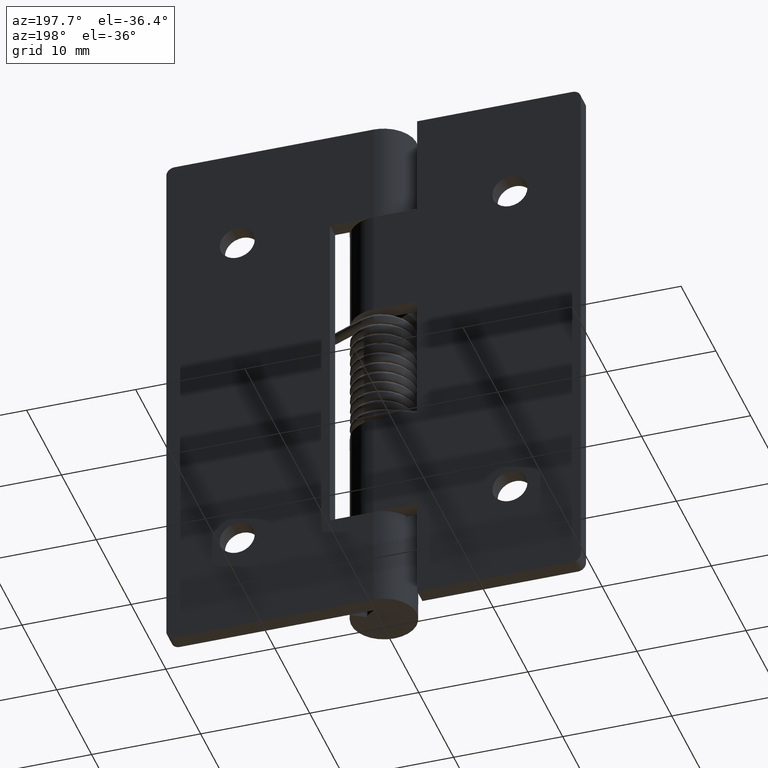
[diagram: clean part render]
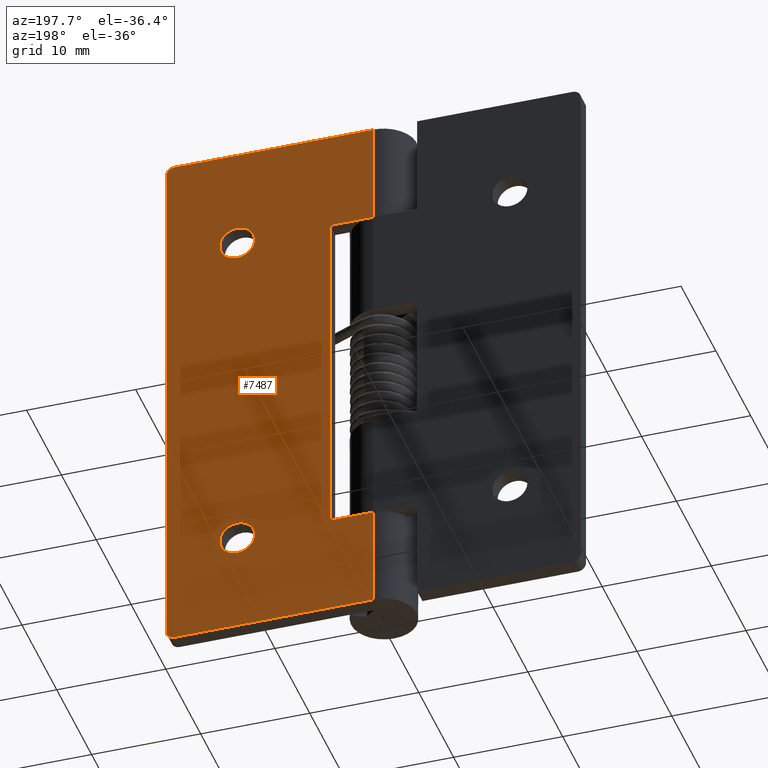
[diagram: same view with one face highlighted and labeled with its STEP entity id]
A machine part, auxiliary view. The second image highlights one B-rep face of the part: STEP entity #7487.
In plain terms, the highlighted face is a freeform B-spline surface patch.
Its self-contained STEP definition (entity closure, byte-faithful):
#6467=CARTESIAN_POINT('',(14.088815242160010,3.0,9.688854775634493));
#6468=VERTEX_POINT('',#6467);
#6474=CARTESIAN_POINT('',(12.500000000000000,3.0,7.899999999999800));
#6475=VERTEX_POINT('',#6474);
#6476=CARTESIAN_POINT('',(14.088815242160010,3.0,9.688854775634491));
#6477=CARTESIAN_POINT('',(14.099999999999998,3.000000000000000,9.594758591628679));
#6478=CARTESIAN_POINT('',(14.100000000000000,3.0,9.499999999999801));
#6479=CARTESIAN_POINT('',(14.100000000000001,3.0,7.899999999999800));
#6480=CARTESIAN_POINT('',(12.500000000000000,3.0,7.899999999999800));
#6488=(BOUNDED_CURVE()B_SPLINE_CURVE(2,(#6476,#6477,#6478,#6479,#6480),.UNSPECIFIED.,.F.,.U.)B_SPLINE_CURVE_WITH_KNOTS((3,2,3),(0.229562473476526,0.250000000000000,0.500000000000000),.UNSPECIFIED.)CURVE()GEOMETRIC_REPRESENTATION_ITEM()RATIONAL_B_SPLINE_CURVE((0.956026754111212,0.976055948287817,1.0,0.707106781186548,1.0))REPRESENTATION_ITEM(''));
#6489=EDGE_CURVE('',#6468,#6475,#6488,.T.);
#6491=CARTESIAN_POINT('',(10.902984322528990,3.0,9.402322336678992));
#6492=VERTEX_POINT('',#6491);
#6493=CARTESIAN_POINT('',(12.500000000000000,3.0,7.899999999999800));
#6494=CARTESIAN_POINT('',(10.994870293073713,3.000000000000000,7.899999999999798));
#6495=CARTESIAN_POINT('',(10.902984322528990,3.0,9.402322336678992));
#6503=(BOUNDED_CURVE()B_SPLINE_CURVE(2,(#6493,#6494,#6495),.UNSPECIFIED.,.F.,.U.)B_SPLINE_CURVE_WITH_KNOTS((3,3),(0.500000000000000,0.739332962227914),.UNSPECIFIED.)CURVE()GEOMETRIC_REPRESENTATION_ITEM()RATIONAL_B_SPLINE_CURVE((1.0,0.719603993299632,0.976072041643080))REPRESENTATION_ITEM(''));
#6504=EDGE_CURVE('',#6475,#6492,#6503,.T.);
#6578=CARTESIAN_POINT('',(12.500000000000000,3.0,11.099999999999801));
#6579=VERTEX_POINT('',#6578);
#6580=CARTESIAN_POINT('',(10.902984322528988,3.000000000000001,9.402322336678992));
#6581=CARTESIAN_POINT('',(10.900000000000000,3.000000000000000,9.451115578656838));
#6582=CARTESIAN_POINT('',(10.900000000000000,3.0,9.499999999999801));
#6583=CARTESIAN_POINT('',(10.900000000000000,3.0,11.099999999999801));
#6584=CARTESIAN_POINT('',(12.500000000000000,3.0,11.099999999999801));
#6592=(BOUNDED_CURVE()B_SPLINE_CURVE(2,(#6580,#6581,#6582,#6583,#6584),.UNSPECIFIED.,.F.,.U.)B_SPLINE_CURVE_WITH_KNOTS((3,2,3),(0.739332962227914,0.750000000000000,1.0),.UNSPECIFIED.)CURVE()GEOMETRIC_REPRESENTATION_ITEM()RATIONAL_B_SPLINE_CURVE((0.976072041643081,0.987502787886917,1.0,0.707106781186548,1.0))REPRESENTATION_ITEM(''));
#6593=EDGE_CURVE('',#6492,#6579,#6592,.T.);
#6595=CARTESIAN_POINT('',(12.500000000000000,3.0,11.099999999999801));
#6596=CARTESIAN_POINT('',(13.921079241190951,3.000000000000000,11.099999999999801));
#6597=CARTESIAN_POINT('',(14.088815242160010,3.0,9.688854775634491));
#6605=(BOUNDED_CURVE()B_SPLINE_CURVE(2,(#6595,#6596,#6597),.UNSPECIFIED.,.F.,.U.)B_SPLINE_CURVE_WITH_KNOTS((3,3),(0.0,0.229562473476526),.UNSPECIFIED.)CURVE()GEOMETRIC_REPRESENTATION_ITEM()RATIONAL_B_SPLINE_CURVE((1.0,0.731050832898730,0.956026754111212))REPRESENTATION_ITEM(''));
#6606=EDGE_CURVE('',#6579,#6468,#6605,.T.);
#6653=CARTESIAN_POINT('',(14.088815242160010,3.0,41.688854775634688));
#6654=VERTEX_POINT('',#6653);
#6660=CARTESIAN_POINT('',(12.500000000000000,3.0,39.900000000000013));
#6661=VERTEX_POINT('',#6660);
#6662=CARTESIAN_POINT('',(14.088815242160011,3.0,41.688854775634688));
#6663=CARTESIAN_POINT('',(14.100000000000007,3.000000000000000,41.594758591628874));
#6664=CARTESIAN_POINT('',(14.100000000000000,3.0,41.500000000000000));
#6665=CARTESIAN_POINT('',(14.100000000000001,3.0,39.900000000000006));
#6666=CARTESIAN_POINT('',(12.500000000000000,3.0,39.900000000000013));
#6674=(BOUNDED_CURVE()B_SPLINE_CURVE(2,(#6662,#6663,#6664,#6665,#6666),.UNSPECIFIED.,.F.,.U.)B_SPLINE_CURVE_WITH_KNOTS((3,2,3),(0.229562473476526,0.250000000000000,0.500000000000000),.UNSPECIFIED.)CURVE()GEOMETRIC_REPRESENTATION_ITEM()RATIONAL_B_SPLINE_CURVE((0.956026754111213,0.976055948287818,1.0,0.707106781186548,1.0))REPRESENTATION_ITEM(''));
#6675=EDGE_CURVE('',#6654,#6661,#6674,.T.);
#6677=CARTESIAN_POINT('',(10.902984322528990,3.0,41.402322336679191));
#6678=VERTEX_POINT('',#6677);
#6679=CARTESIAN_POINT('',(12.500000000000000,3.0,39.900000000000013));
#6680=CARTESIAN_POINT('',(10.994870293073713,3.000000000000000,39.899999999999999));
#6681=CARTESIAN_POINT('',(10.902984322528990,3.0,41.402322336679191));
#6689=(BOUNDED_CURVE()B_SPLINE_CURVE(2,(#6679,#6680,#6681),.UNSPECIFIED.,.F.,.U.)B_SPLINE_CURVE_WITH_KNOTS((3,3),(0.500000000000000,0.739332962227914),.UNSPECIFIED.)CURVE()GEOMETRIC_REPRESENTATION_ITEM()RATIONAL_B_SPLINE_CURVE((1.0,0.719603993299632,0.976072041643080))REPRESENTATION_ITEM(''));
#6690=EDGE_CURVE('',#6661,#6678,#6689,.T.);
#6764=CARTESIAN_POINT('',(12.500000000000000,3.0,43.100000000000001));
#6765=VERTEX_POINT('',#6764);
#6766=CARTESIAN_POINT('',(10.902984322528990,3.0,41.402322336679191));
#6767=CARTESIAN_POINT('',(10.900000000000006,3.000000000000000,41.451115578657038));
#6768=CARTESIAN_POINT('',(10.900000000000000,3.0,41.500000000000000));
#6769=CARTESIAN_POINT('',(10.900000000000000,3.0,43.099999999999994));
#6770=CARTESIAN_POINT('',(12.500000000000000,3.0,43.100000000000001));
#6778=(BOUNDED_CURVE()B_SPLINE_CURVE(2,(#6766,#6767,#6768,#6769,#6770),.UNSPECIFIED.,.F.,.U.)B_SPLINE_CURVE_WITH_KNOTS((3,2,3),(0.739332962227914,0.750000000000000,1.0),.UNSPECIFIED.)CURVE()GEOMETRIC_REPRESENTATION_ITEM()RATIONAL_B_SPLINE_CURVE((0.976072041643080,0.987502787886916,1.0,0.707106781186548,1.0))REPRESENTATION_ITEM(''));
#6779=EDGE_CURVE('',#6678,#6765,#6778,.T.);
#6781=CARTESIAN_POINT('',(12.500000000000000,3.0,43.100000000000001));
#6782=CARTESIAN_POINT('',(13.921079241190951,3.0,43.100000000000001));
#6783=CARTESIAN_POINT('',(14.088815242160011,3.0,41.688854775634688));
#6791=(BOUNDED_CURVE()B_SPLINE_CURVE(2,(#6781,#6782,#6783),.UNSPECIFIED.,.F.,.U.)B_SPLINE_CURVE_WITH_KNOTS((3,3),(0.0,0.229562473476526),.UNSPECIFIED.)CURVE()GEOMETRIC_REPRESENTATION_ITEM()RATIONAL_B_SPLINE_CURVE((1.0,0.731050832898730,0.956026754111213))REPRESENTATION_ITEM(''));
#6792=EDGE_CURVE('',#6765,#6654,#6791,.T.);
#6812=CARTESIAN_POINT('',(4.0,3.0,9.499999999999801));
#6813=VERTEX_POINT('',#6812);
#6819=CARTESIAN_POINT('',(0.0,3.0,9.499999999999801));
#6820=VERTEX_POINT('',#6819);
#6821=CARTESIAN_POINT('',(4.0,3.0,9.499999999999801));
#6822=CARTESIAN_POINT('',(0.0,3.0,9.499999999999801));
#6823=QUASI_UNIFORM_CURVE('',1,(#6821,#6822),.UNSPECIFIED.,.F.,.U.);
#6824=EDGE_CURVE('',#6813,#6820,#6823,.T.);
#6883=CARTESIAN_POINT('',(0.0,3.0,41.500000000000000));
#6884=VERTEX_POINT('',#6883);
#6904=CARTESIAN_POINT('',(4.0,3.0,41.500000000000000));
#6905=VERTEX_POINT('',#6904);
#6906=CARTESIAN_POINT('',(0.0,3.0,41.500000000000000));
#6907=CARTESIAN_POINT('',(4.0,3.0,41.500000000000000));
#6908=QUASI_UNIFORM_CURVE('',1,(#6906,#6907),.UNSPECIFIED.,.F.,.U.);
#6909=EDGE_CURVE('',#6884,#6905,#6908,.T.);
#6965=CARTESIAN_POINT('',(4.0,3.0,41.500000000000000));
#6966=CARTESIAN_POINT('',(4.0,3.0,9.499999999999801));
#6967=QUASI_UNIFORM_CURVE('',1,(#6965,#6966),.UNSPECIFIED.,.F.,.U.);
#6968=EDGE_CURVE('',#6905,#6813,#6967,.T.);
#7005=CARTESIAN_POINT('',(19.0,3.0,50.250000000000000));
#7006=VERTEX_POINT('',#7005);
#7012=CARTESIAN_POINT('',(18.250000000000000,3.0,51.0));
#7013=VERTEX_POINT('',#7012);
#7014=CARTESIAN_POINT('',(19.0,3.0,50.250000000000000));
#7015=CARTESIAN_POINT('',(18.999999999999993,3.0,51.000000000000007));
#7016=CARTESIAN_POINT('',(18.250000000000000,3.0,51.000000000000007));
#7024=(BOUNDED_CURVE()B_SPLINE_CURVE(2,(#7014,#7015,#7016),.UNSPECIFIED.,.F.,.U.)CURVE()GEOMETRIC_REPRESENTATION_ITEM()QUASI_UNIFORM_CURVE()RATIONAL_B_SPLINE_CURVE((1.0,0.707106781186548,1.0))REPRESENTATION_ITEM(''));
#7025=EDGE_CURVE('',#7006,#7013,#7024,.T.);
#7066=CARTESIAN_POINT('',(18.250000000000000,3.0,0.0));
#7067=VERTEX_POINT('',#7066);
#7073=CARTESIAN_POINT('',(19.0,3.0,0.750000000000000));
#7074=VERTEX_POINT('',#7073);
#7075=CARTESIAN_POINT('',(18.250000000000000,3.0,0.0));
#7076=CARTESIAN_POINT('',(18.999999999999993,3.0,0.0));
#7077=CARTESIAN_POINT('',(19.0,3.0,0.750000000000000));
#7085=(BOUNDED_CURVE()B_SPLINE_CURVE(2,(#7075,#7076,#7077),.UNSPECIFIED.,.F.,.U.)CURVE()GEOMETRIC_REPRESENTATION_ITEM()QUASI_UNIFORM_CURVE()RATIONAL_B_SPLINE_CURVE((1.0,0.707106781186548,1.0))REPRESENTATION_ITEM(''));
#7086=EDGE_CURVE('',#7067,#7074,#7085,.T.);
#7109=CARTESIAN_POINT('',(0.0,3.0,51.0));
#7110=VERTEX_POINT('',#7109);
#7111=CARTESIAN_POINT('',(0.0,3.0,51.0));
#7112=CARTESIAN_POINT('',(18.250000000000000,3.0,51.0));
#7113=QUASI_UNIFORM_CURVE('',1,(#7111,#7112),.UNSPECIFIED.,.F.,.U.);
#7114=EDGE_CURVE('',#7110,#7013,#7113,.T.);
#7207=CARTESIAN_POINT('',(0.0,3.0,0.0));
#7208=VERTEX_POINT('',#7207);
#7228=CARTESIAN_POINT('',(0.0,3.0,0.0));
#7229=CARTESIAN_POINT('',(18.250000000000000,3.0,0.0));
#7230=QUASI_UNIFORM_CURVE('',1,(#7228,#7229),.UNSPECIFIED.,.F.,.U.);
#7231=EDGE_CURVE('',#7208,#7067,#7230,.T.);
#7241=CARTESIAN_POINT('',(19.0,3.0,0.750000000000000));
#7242=CARTESIAN_POINT('',(19.0,3.0,50.250000000000000));
#7243=QUASI_UNIFORM_CURVE('',1,(#7241,#7242),.UNSPECIFIED.,.F.,.U.);
#7244=EDGE_CURVE('',#7074,#7006,#7243,.T.);
#7385=CARTESIAN_POINT('',(0.0,3.0,0.0));
#7386=CARTESIAN_POINT('',(0.0,3.0,9.499999999999801));
#7387=QUASI_UNIFORM_CURVE('',1,(#7385,#7386),.UNSPECIFIED.,.F.,.U.);
#7388=EDGE_CURVE('',#7208,#6820,#7387,.T.);
#7420=CARTESIAN_POINT('',(0.0,3.0,41.500000000000000));
#7421=CARTESIAN_POINT('',(0.0,3.0,51.0));
#7422=QUASI_UNIFORM_CURVE('',1,(#7420,#7421),.UNSPECIFIED.,.F.,.U.);
#7423=EDGE_CURVE('',#6884,#7110,#7422,.T.);
#7458=CARTESIAN_POINT('',(-0.949049963174314,3.0,53.547449901152113));
#7459=CARTESIAN_POINT('',(-0.949049963174314,3.0,-2.547451269078700));
#7460=CARTESIAN_POINT('',(19.949050472794021,3.0,53.547449901152113));
#7461=CARTESIAN_POINT('',(19.949050472794021,3.0,-2.547451269078700));
#7462=B_SPLINE_SURFACE_WITH_KNOTS('',1,1,((#7458,#7460),(#7459,#7461)),.UNSPECIFIED.,.F.,.F.,.U.,(2,2),(2,2),(0.0,56.094901170230813),(0.0,20.898100435968342),.UNSPECIFIED.);
#7463=ORIENTED_EDGE('',*,*,#6909,.F.);
#7464=ORIENTED_EDGE('',*,*,#7423,.T.);
#7465=ORIENTED_EDGE('',*,*,#7114,.T.);
#7466=ORIENTED_EDGE('',*,*,#7025,.F.);
#7467=ORIENTED_EDGE('',*,*,#7244,.F.);
#7468=ORIENTED_EDGE('',*,*,#7086,.F.);
#7469=ORIENTED_EDGE('',*,*,#7231,.F.);
#7470=ORIENTED_EDGE('',*,*,#7388,.T.);
#7471=ORIENTED_EDGE('',*,*,#6824,.F.);
#7472=ORIENTED_EDGE('',*,*,#6968,.F.);
#7473=EDGE_LOOP('',(#7463,#7464,#7465,#7466,#7467,#7468,#7469,#7470,#7471,#7472));
#7474=FACE_OUTER_BOUND('',#7473,.T.);
#7475=ORIENTED_EDGE('',*,*,#6690,.F.);
#7476=ORIENTED_EDGE('',*,*,#6675,.F.);
#7477=ORIENTED_EDGE('',*,*,#6792,.F.);
#7478=ORIENTED_EDGE('',*,*,#6779,.F.);
#7479=EDGE_LOOP('',(#7475,#7476,#7477,#7478));
#7480=FACE_BOUND('',#7479,.T.);
#7481=ORIENTED_EDGE('',*,*,#6504,.F.);
#7482=ORIENTED_EDGE('',*,*,#6489,.F.);
#7483=ORIENTED_EDGE('',*,*,#6606,.F.);
#7484=ORIENTED_EDGE('',*,*,#6593,.F.);
#7485=EDGE_LOOP('',(#7481,#7482,#7483,#7484));
#7486=FACE_BOUND('',#7485,.T.);
#7487=ADVANCED_FACE('',(#7474,#7480,#7486),#7462,.F.);